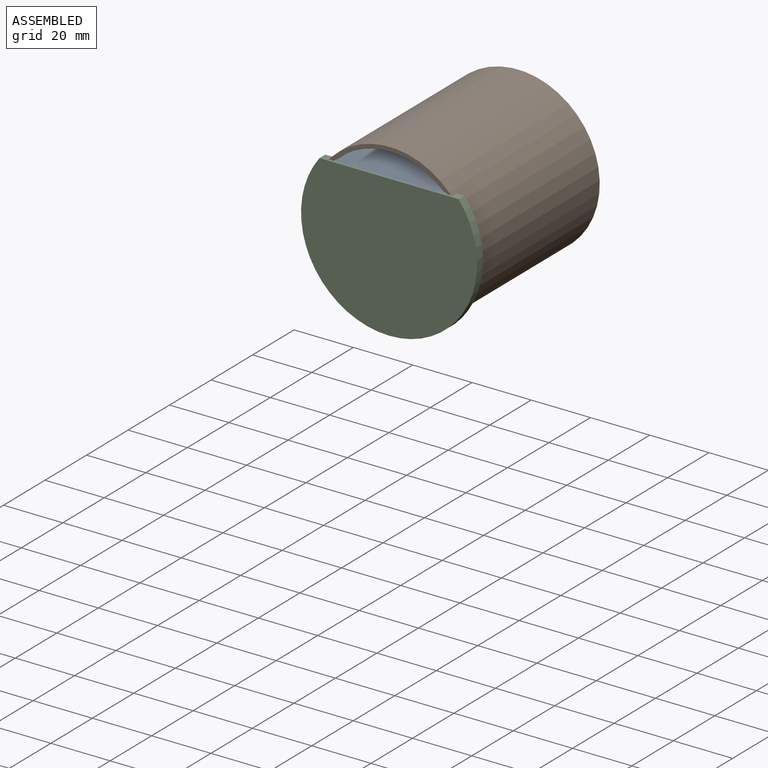
[diagram: assembled view]
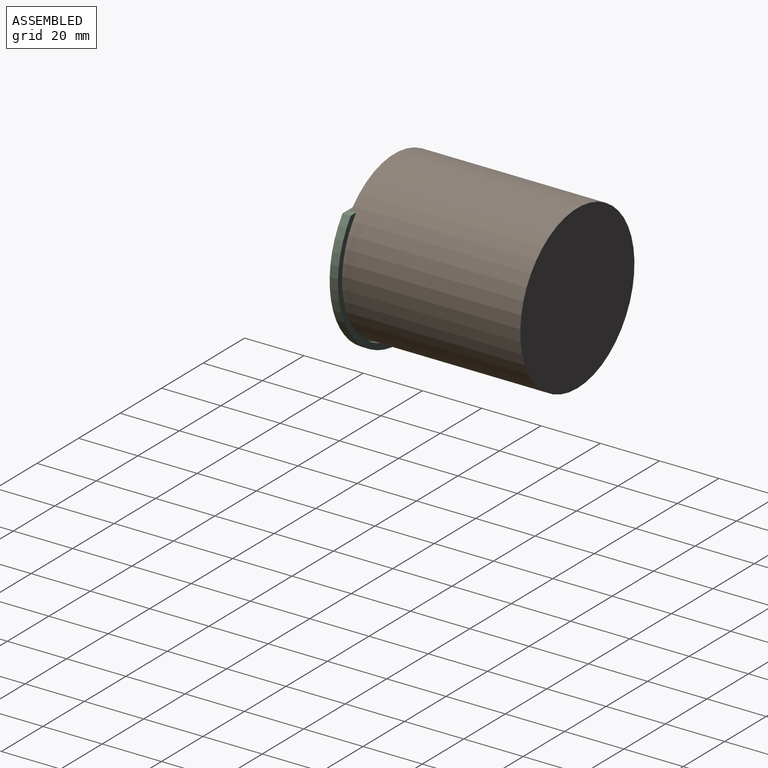
[diagram: assembled view, second angle]
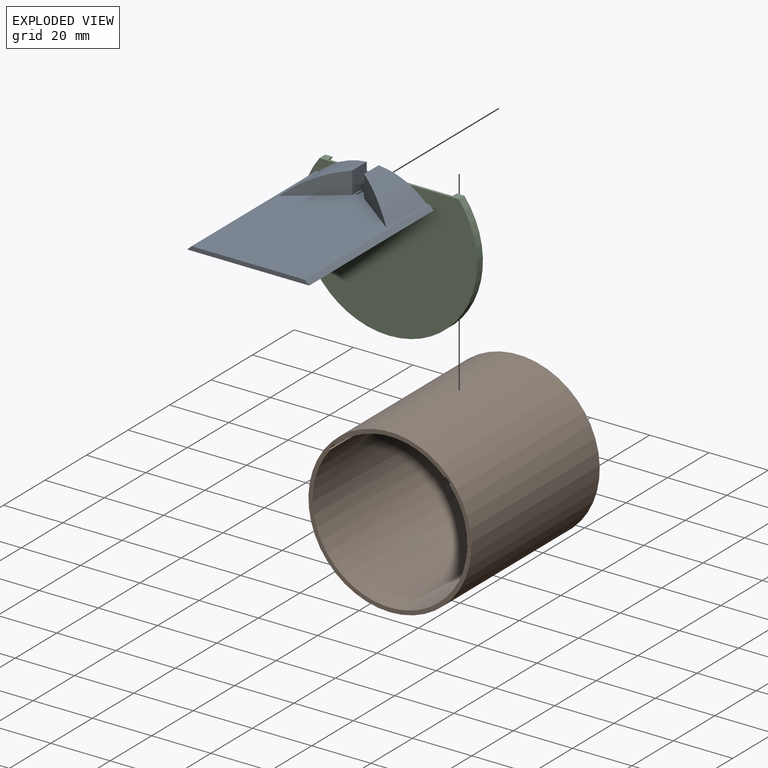
[diagram: exploded view]
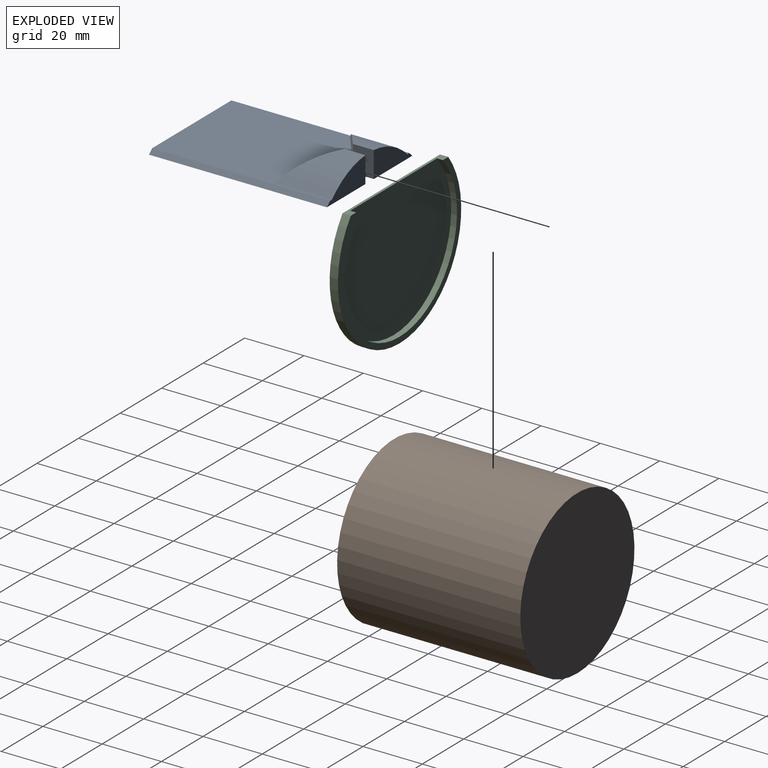
[diagram: exploded view, second angle]
ASSEMBLY  parts=3 mates=5
PART A: 14 faces, bbox 41.2x60x8.8 mm
  f0: plane 18.6x8.82mm, normal (0,1,0), area 103.8mm2, adj f5,f6,f7,f10,f11
  f1: plane 8.82x7mm, normal (-1,0,0), area 54.8mm2, adj f2,f3,f5,f7,f12,f13
  f2: plane 18.6x8.82mm, normal (0,1,0), area 103.8mm2, adj f1,f5,f7,f8,f12
  f3: plane 16.15x12.28mm, normal (-0.61,-0.8,0), area 99mm2, adj f1,f5,f12
  f4: plane 16.15x12.28mm, normal (0.61,-0.8,0), area 99mm2, adj f5,f10,f11
  f5: plane 60x38.2mm, normal (0,0,1), area 1853.3mm2, adj f0,f1,f2,f3,f4,f6,f8,f9
  f6: plane 60x1.5mm, normal (-0.68,0,0.73), area 123.2mm2, adj f0,f5,f7,f9
  f7: plane 60x41.2mm, normal (0,0,-1), area 2457.7mm2, adj f0,f1,f2,f6,f8,f9,f10,f13
  f8: plane 60x1.5mm, normal (0.68,0,0.73), area 123.1mm2, adj f2,f5,f7,f9
  f9: plane 41.2x1.4mm, normal (0,-1,0), area 55.6mm2, adj f5,f6,f7,f8
  f10: plane 8.82x7mm, normal (1,0,0), area 54.8mm2, adj f0,f4,f5,f7,f11,f13
  f11: cylinder r=25.71mm len=19.28mm, axis (0,1,0), area 244.5mm2, adj f0,f4,f5,f10
  f12: cylinder r=25.71mm len=19.28mm, axis (0,1,0), area 244.5mm2, adj f1,f2,f3,f5
  f13: cylinder r=2mm len=4mm, axis (0,0,1), area 8.8mm2, adj f1,f5,f7,f10
PART B: 29 faces, bbox 55x61.8x55 mm
  f0: cylinder r=26.1mm len=60mm, axis (0,1,0), area 6632.4mm2, adj f4,f5,f6,f8,f12,f16,f18,f19
  f1: plane 13.5x7.71mm, normal (0,0,1), area 49.6mm2, adj f2,f3,f7,f19,f20,f21,f22,f23
  f2: plane 9.61x5.4mm, normal (1,0,0), area 51.9mm2, adj f1,f4,f7,f23
  f3: plane 9.61x5.4mm, normal (-1,0,0), area 51.9mm2, adj f1,f5,f7,f22
  f4: plane 27x18.78mm, normal (0,0,1), area 367.3mm2, adj f0,f2,f7,f15,f20,f23,f27
  f5: plane 27x18.78mm, normal (0,0,1), area 367.3mm2, adj f0,f3,f7,f13,f19,f22,f28
  f6: plane 52.2x35.7mm, normal (0,-1,0), area 1559.6mm2, adj f0,f18
  f7: plane 41.57x14.9mm, normal (0,-1,0), area 290.4mm2, adj f1,f2,f3,f4,f5,f9,f13,f14
  f8: plane 55x55mm, normal (0,-1,0), area 233.3mm2, adj f0,f9,f10,f12,f13,f14,f15,f16
  f9: cylinder r=26.1mm len=60mm, axis (0,1,0), area 2435.2mm2, adj f7,f8,f14,f17
  f10: cylinder r=27.5mm len=61.8mm, axis (0,1,0), area 10678.3mm2, adj f8,f11
  f11: plane 55x55mm, normal (0,1,0), area 2375.8mm2, adj f10
  f12: plane 32.6x0.65mm, normal (0,0,1), area 21.2mm2, adj f0,f8,f13,f28
  f13: cylinder r=26.6mm len=60mm, axis (0,-1,0), area 151.8mm2, adj f5,f7,f8,f12,f14,f28
  f14: plane 60x0.71mm, normal (0,0,-1), area 42.4mm2, adj f7,f8,f9,f13
  f15: cylinder r=26.6mm len=60mm, axis (0,-1,0), area 151.8mm2, adj f4,f7,f8,f16,f17,f27
  f16: plane 32.6x0.65mm, normal (0,0,1), area 21.2mm2, adj f0,f8,f15,f27
  f17: plane 60x0.71mm, normal (0,0,-1), area 42.4mm2, adj f7,f8,f9,f15
  f18: plane 48.54x28.71mm, normal (0,0,-1), area 922.2mm2, adj f0,f6,f24,f25,f26
  f19: plane 21.85x17.66mm, normal (-0.63,-0.78,0), area 142.8mm2, adj f0,f1,f5,f21,f22,f24
  f20: plane 21.85x17.66mm, normal (0.63,-0.78,0), area 142.8mm2, adj f0,f1,f4,f21,f23,f26
  f21: plane 4x0.6mm, normal (0,-1,0), area 2.4mm2, adj f1,f19,f20,f25
  f22: cylinder r=5mm len=5.4mm, axis (0,0,1), area 24.1mm2, adj f1,f3,f5,f19
  f23: cylinder r=5mm len=5.4mm, axis (0,0,1), area 24.1mm2, adj f1,f2,f4,f20
  f24: plane 22.28x18.67mm, normal (-0.44,-0.55,-0.71), area 39.8mm2, adj f0,f18,f19,f25
  f25: plane 4.71x1mm, normal (0,-0.71,-0.71), area 6.2mm2, adj f18,f21,f24,f26
  f26: plane 22.28x18.67mm, normal (0.44,-0.55,-0.71), area 39.8mm2, adj f0,f18,f20,f25
  f27: cylinder r=0.5mm len=0.81mm, axis (1,0,0), area 0.3mm2, adj f0,f4,f15,f16
  f28: cylinder r=0.5mm len=0.81mm, axis (1,0,0), area 0.3mm2, adj f0,f5,f12,f13
PART C: 6 faces, bbox 59.4x47.9x2.8 mm
  f0: plane 46.94x2.8mm, normal (0,1,0), area 47.9mm2, adj f1,f2,f3,f4,f5
  f1: plane 59.4x47.9mm, normal (0,0,1), area 2394.5mm2, adj f0,f4
  f2: plane 55.4x45.9mm, normal (0,0,-1), area 2135.3mm2, adj f0,f3
  f3: cylinder r=27.7mm len=55.4mm, axis (0,0,1), area 253.5mm2, adj f0,f2,f5
  f4: cylinder r=29.7mm len=59.4mm, axis (0,0,1), area 370.9mm2, adj f0,f1,f5
  f5: plane 59.4x47.9mm, normal (0,0,-1), area 259.2mm2, adj f0,f3,f4
PLACE A t=(-71.05,41.2,96.2)mm
PLACE B t=(-50.45,41.2,79.4)mm fixed
PLACE C rot(axis=(1,0,0),90deg) t=(-50.28,-18.8,80.34)mm
MATE planar A.f7 <-> B.f16  axis (0,0,-1) through (-71.05,-18.8,96.2)mm
MATE planar A.f2 <-> B.f7  axis (0,1,0) through (-41.67,41.2,99.64)mm
MATE planar A.f10 <-> B.f2  axis (1,0,0) through (-52.45,37.83,101.08)mm
MATE planar C.f0 <-> A.f5  axis (0,0,1) through (-50.18,-18.9,97.6)mm
MATE planar C.f2 <-> B.f8  axis (0,1,0) through (-50.18,-18.8,76.56)mm
